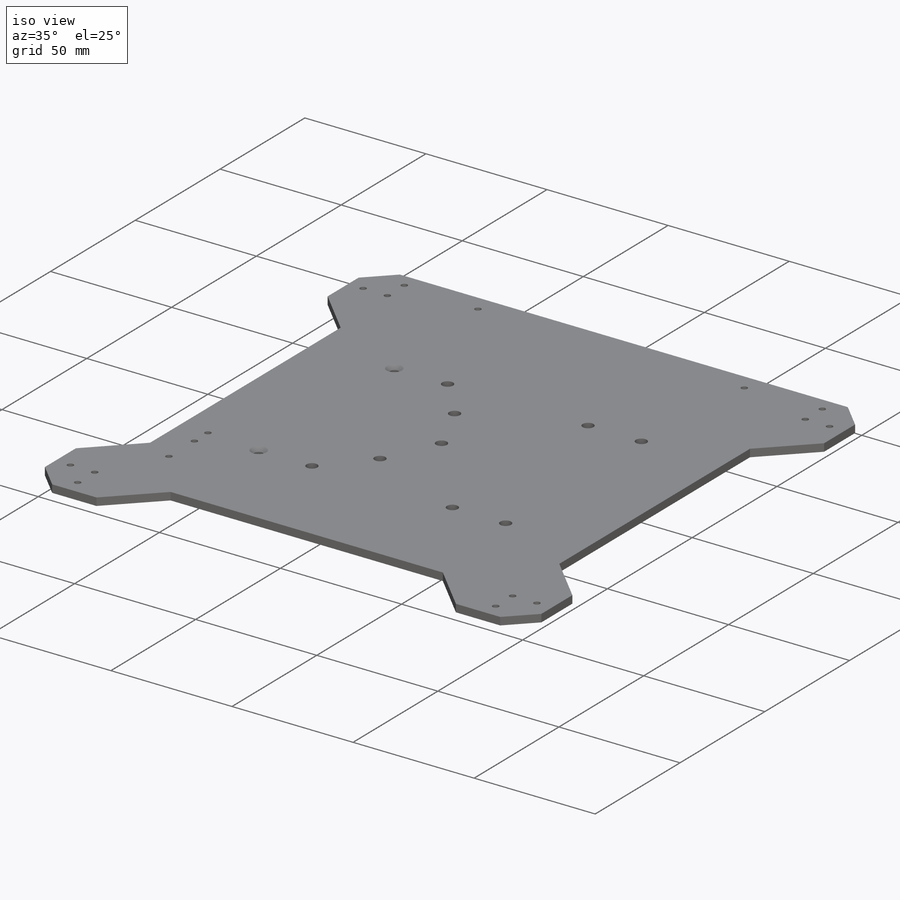
[diagram: iso view]
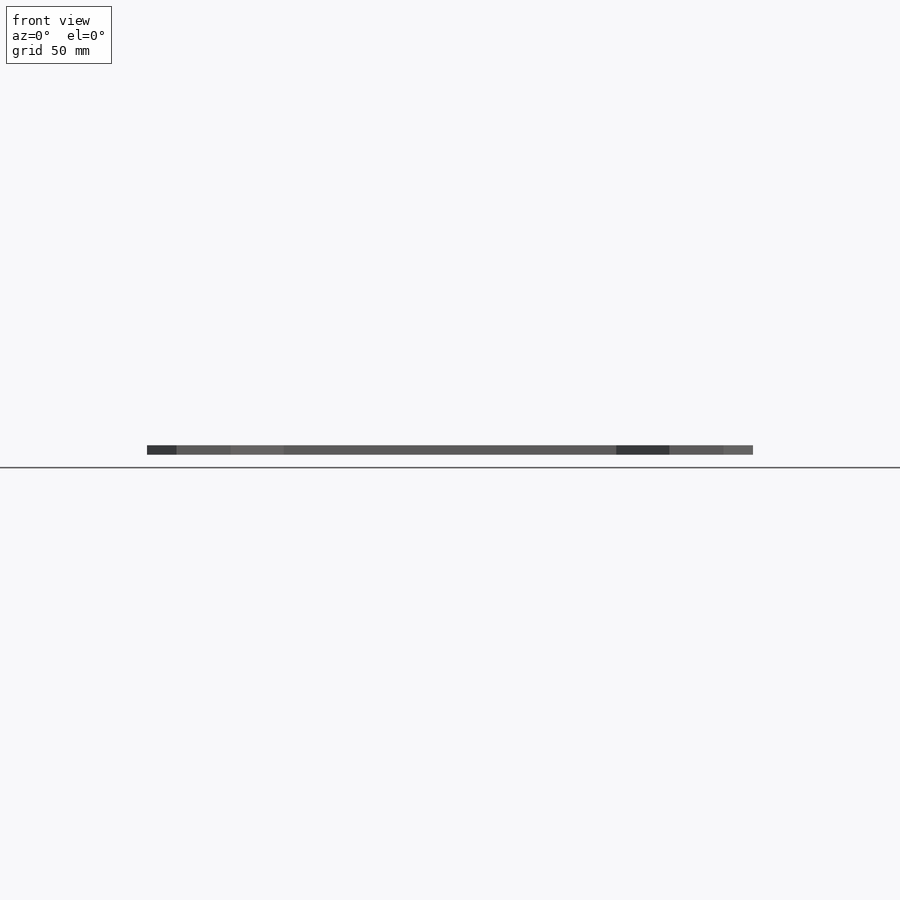
[diagram: front view]
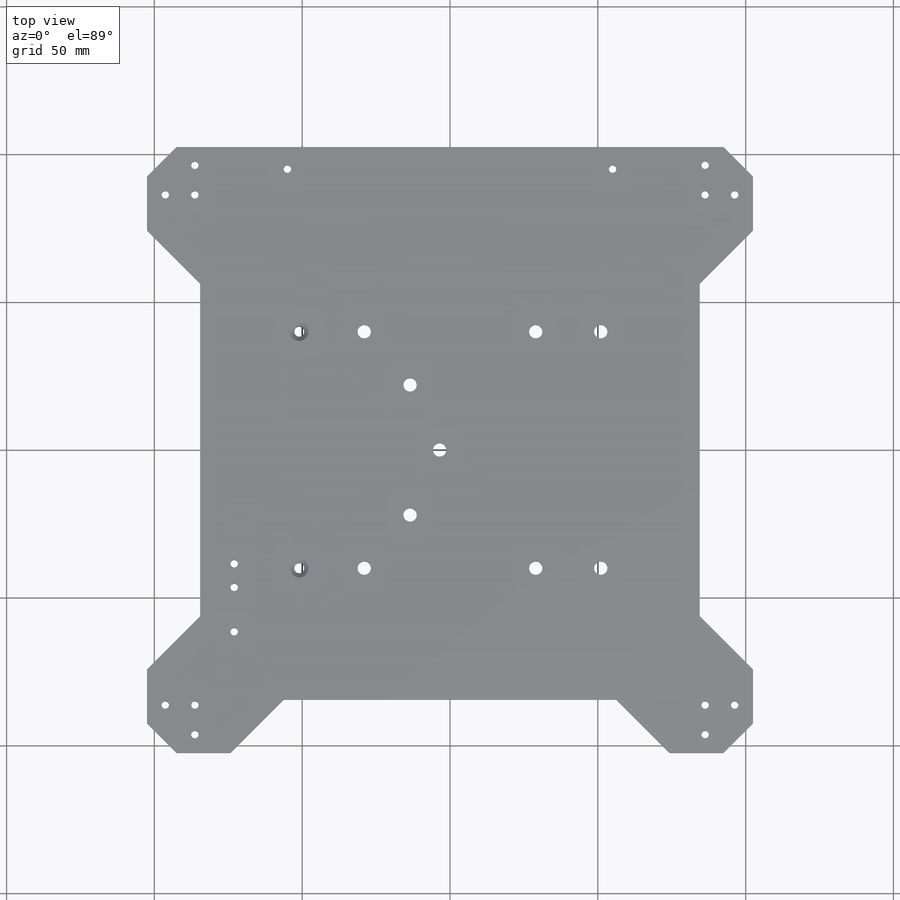
[diagram: top view]
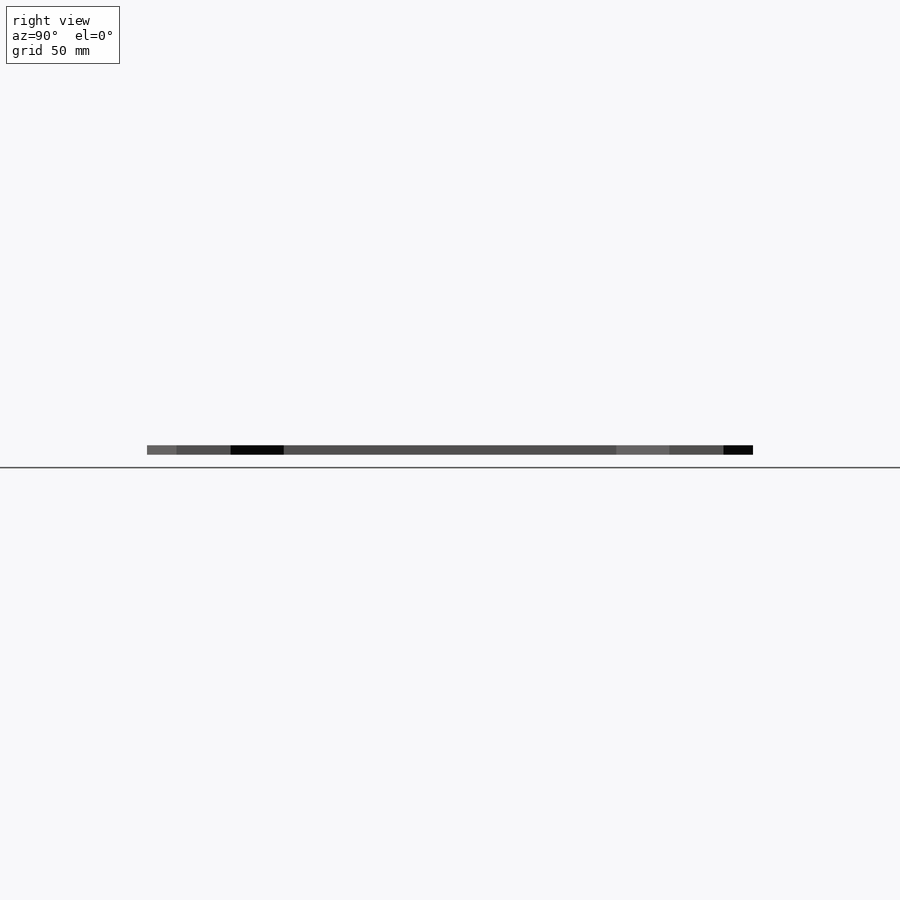
[diagram: right view]
SOLIDWORKS PART (.sldprt)
format: sldprt  version: not decoded by parser v0  size: 421,888 bytes
history: native  units: mm
features: thread x12, sketch x9, cut_extrude x4, hole x2, material x1, extrude x1 (+11 scaffold rows collapsed)
feature tree (40):
  scaffold x11  (default folders/planes/origin — collapsed)
  material  "6061-T6 (SS)"
  sketch  "Sketch1"  dims[c1.D1=~118.638213mm c2.D1=90.0deg c3.D1=205.0mm c3.D2=205.0mm]
  extrude  "Boss-Extrude1"  Depth=3.175mm
  sketch  "Sketch2"  dims[D1=3.0mm D2=4.5mm]
  cut_extrude  "Cut-Extrude1"  [1 undecoded]
  hole  "M3x0.5 Tapped Hole1"  Diameter=2.5mm Depth=3.175mm
  sketch  "Sketch4"  dims[D1=16.2mm D2=6.2mm D3=6.2mm D4=16.2mm D5=16.2mm D6=6.2mm D7=6.2mm D8=16.2mm]
  sketch  "Sketch3"  dims[hole-wizard template sketch: 61 standard entries collapsed; hole parameters above]
  thread  "Hole Thread1"  Diameter=3mm  [1 undecoded]
  thread  "Hole Thread2"  Diameter=3mm  [1 undecoded]
  thread  "Hole Thread3"  Diameter=3mm  [1 undecoded]
  thread  "Hole Thread4"  Diameter=3mm  [1 undecoded]
  thread  "Hole Thread5"  Diameter=3mm  [1 undecoded]
  thread  "Hole Thread6"  Diameter=3mm  [1 undecoded]
  thread  "Hole Thread7"  Diameter=3mm  [1 undecoded]
  thread  "Hole Thread8"  Diameter=3mm  [1 undecoded]
  thread  "Hole Thread9"  Diameter=3mm  [1 undecoded]
  thread  "Hole Thread10"  Diameter=3mm  [1 undecoded]
  thread  "Hole Thread11"  Diameter=3mm  [1 undecoded]
  thread  "Hole Thread12"  Diameter=3mm  [1 undecoded]
  sketch  "Sketch5"  dims[D1=2.5mm]
  cut_extrude  "Cut-Extrude2"  [1 undecoded]
  sketch  "Sketch6"  dims[D3=2.5mm D1=56.0mm D2=29.5mm D4=8.0mm D5=15.0mm]
  cut_extrude  "Cut-Extrude3"  Depth=10mm
  hole  "CSK for M3 Flat Head Machine Screw1"  Diameter=3.4mm Depth=3.175mm
  sketch  "Sketch8"
  sketch  "Sketch7"  dims[hole-wizard template sketch: 59 standard entries collapsed; hole parameters above]
  sketch  "Sketch9"  dims[c1.D6=2.5mm c1.D1=~23.952296mm c2.D1=45.0deg c2.D2=18.0mm c2.D3=18.0mm c2.D4=18.0mm c2.D5=20.0mm c2.D6=20.0mm c2.D7=20.0mm c2.D8=20.0mm c2.D9=20.0mm c2.D10=20.0mm]
  cut_extrude  "Cut-Extrude4"  Depth=10mm
decode coverage: 25 of 28 modeling features carry decoded parameters
note: ~ marks probable driven/reference dimensions
note: 14 parameter values undecoded
note: suppression state not decoded; provenance and decode notes live in map.json
